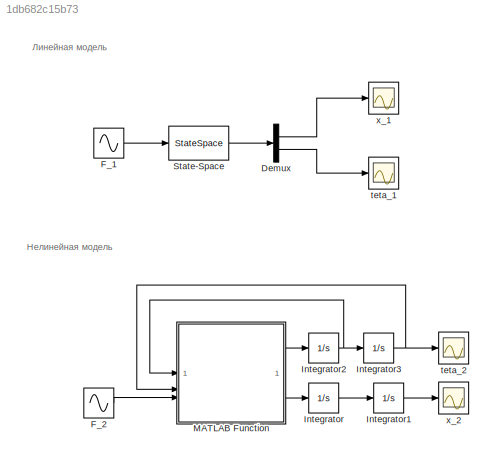
MODEL slx_1db682c15b73
KIND model
CONFIG AbsTol = auto
CONFIG EnableMultiTasking = off
CONFIG FixedStep = auto
CONFIG MaxStep = auto
CONFIG MinStep = auto
CONFIG RelTol = 1e-3
CONFIG SampleTimeConstraint = Unconstrained
CONFIG SolverName = VariableStepAuto
CONFIG StartTime = 0.0
CONFIG StopTime = 10.0
BLOCK [Demux] Demux
  Outputs = 2
BLOCK [Sin] F_1
  Frequency = 2
  SampleTime = 0
BLOCK [Sin] F_2
  Frequency = 2
  SampleTime = 0
BLOCK [Integrator] Integrator
  InitialCondition = 0.5
BLOCK [Integrator] Integrator1
BLOCK [Integrator] Integrator2
BLOCK [Integrator] Integrator3
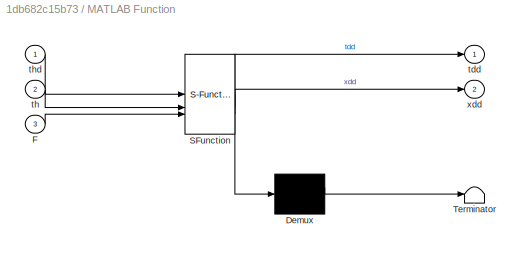
BLOCK [SubSystem] MATLAB Function
  ErrorFcn = Stateflow.Translate.translate
  PermitHierarchicalResolution = ExplicitOnly
  SFBlockType = MATLAB Function
  TreatAsAtomicUnit = on
BLOCK [Demux] MATLAB Function/ Demux 
  Outputs = 1
BLOCK [S-Function] MATLAB Function/ SFunction 
  EnableBusSupport = on
  FunctionName = sf_sfun
  PortCounts = [3 3]
  SFcnIsStateOwnerBlock = off
  SFunctionDeploymentMode = off
  Tag = Stateflow S-Function 2
BLOCK [Terminator] MATLAB Function/ Terminator 
BLOCK [Inport] MATLAB Function/F
  Port = 3
BLOCK [Outport] MATLAB Function/tdd
BLOCK [Inport] MATLAB Function/th
  Port = 2
BLOCK [Inport] MATLAB Function/thd
BLOCK [Outport] MATLAB Function/xdd
  Port = 2
BLOCK [StateSpace] State-Space
  A = [0,1,0,0; 0,0,-2.4525,0; 0,0,0,1; 0,0,-32.7,0]
  B = [0; 0.5; 0; -1.6667]
  C = [1,0,0,0; 0,0,1,0]
  D = [0;0]
  InitialCondition = [0,0.5,0,0]
BLOCK [Scope] teta_1
  Floating = off
  NumInputPorts = 1
  ScopeSpecificationString = Simulink.scopes.TimeScopeBlockCfg('CurrentConfiguration', extmgr.ConfigurationSet(extmgr.Configuration('Core','General UI',true),extmgr.Configuration('Core','Source UI',true),extmgr.Configuration('Sources','WiredSimulink',true,'DataLoggingVariableName','ScopeData1'),extmgr.Configuration('Visuals','Time Domain',true,'SerializedDisplays',{struct('MinYLimReal','-0.09736','MaxYLimReal','0.09423','YLab...<+1484ch>
BLOCK [Scope] teta_2
  Floating = off
  NumInputPorts = 1
  ScopeSpecificationString = Simulink.scopes.TimeScopeBlockCfg('CurrentConfiguration', extmgr.ConfigurationSet(extmgr.Configuration('Core','General UI',true),extmgr.Configuration('Core','Source UI',true),extmgr.Configuration('Sources','WiredSimulink',true,'DataLoggingVariableName','ScopeData3'),extmgr.Configuration('Visuals','Time Domain',true,'SerializedDisplays',{struct('MinYLimReal','-0.07243','MaxYLimReal','0.0716','YLabe...<+1486ch>
BLOCK [Scope] x_1
  Floating = off
  NumInputPorts = 1
  ScopeSpecificationString = Simulink.scopes.TimeScopeBlockCfg('CurrentConfiguration', extmgr.ConfigurationSet(extmgr.Configuration('Core','General UI',true),extmgr.Configuration('Core','Source UI',true),extmgr.Configuration('Sources','WiredSimulink',true),extmgr.Configuration('Visuals','Time Domain',true,'SerializedDisplays',{struct('MinYLimReal','-0.99741','MaxYLimReal','8.97672','YLabelReal','','MinYLimMag','0.00000','MaxY...<+1445ch>
BLOCK [Scope] x_2
  Floating = off
  NumInputPorts = 1
  ScopeSpecificationString = Simulink.scopes.TimeScopeBlockCfg('CurrentConfiguration', extmgr.ConfigurationSet(extmgr.Configuration('Core','General UI',true),extmgr.Configuration('Core','Source UI',true),extmgr.Configuration('Sources','WiredSimulink',true,'DataLoggingVariableName','ScopeData2'),extmgr.Configuration('Visuals','Time Domain',true,'SerializedDisplays',{struct('MinYLimReal','-0.8638','MaxYLimReal','7.77421','YLabe...<+1486ch>
ANNOTATION (root): Линейная модель
ANNOTATION (root): Нелинейная модель
LINE Demux:1 -> x_1:1
LINE Demux:2 -> teta_1:1
LINE F_1:1 -> State-Space:1
LINE F_2:1 -> MATLAB Function:3
LINE Integrator1:1 -> x_2:1
NET Integrator2:1 -> Integrator3:1, MATLAB Function:1
NET Integrator3:1 -> MATLAB Function:2, teta_2:1
LINE Integrator:1 -> Integrator1:1
LINE MATLAB Function:1 -> Integrator2:1
LINE MATLAB Function:2 -> Integrator:1
LINE State-Space:1 -> Demux:1
note: NET lines group one-source signal fan-out (src -> all destinations, sorted); 1:1 wires keep LINE
CHART MATLAB Function states=1 transitions=1
  STATE_LABEL 'eML_blk_kernel()'
  STATE_LABEL 'SCRIPT:\nfunction [tdd, xdd] = pendulum_eq(thd, th, F)\n    % th, thd — текущие состояния\n    % Возвращает [xdd, tdd]\n    \n    % Решаем систему:\n    % (M+m)*xdd + m*l*cos(th)*tdd = F + m*l*thd^2*sin(th)\n    % cos(th)*xdd + l*tdd = -g*sin(th)\n    M = 2;\n    m = 0.5;\n    l = 0.3;\n    g = 9.81;\n\n    A = [M+m, m*l*cos(th); cos(th), l];\n    B = [F + m*l*thd^2*sin(th); -g*sin(th)];\n    \n    sol = A\\B;\n   ...<+36ch>'
CHART  states=0 transitions=0
